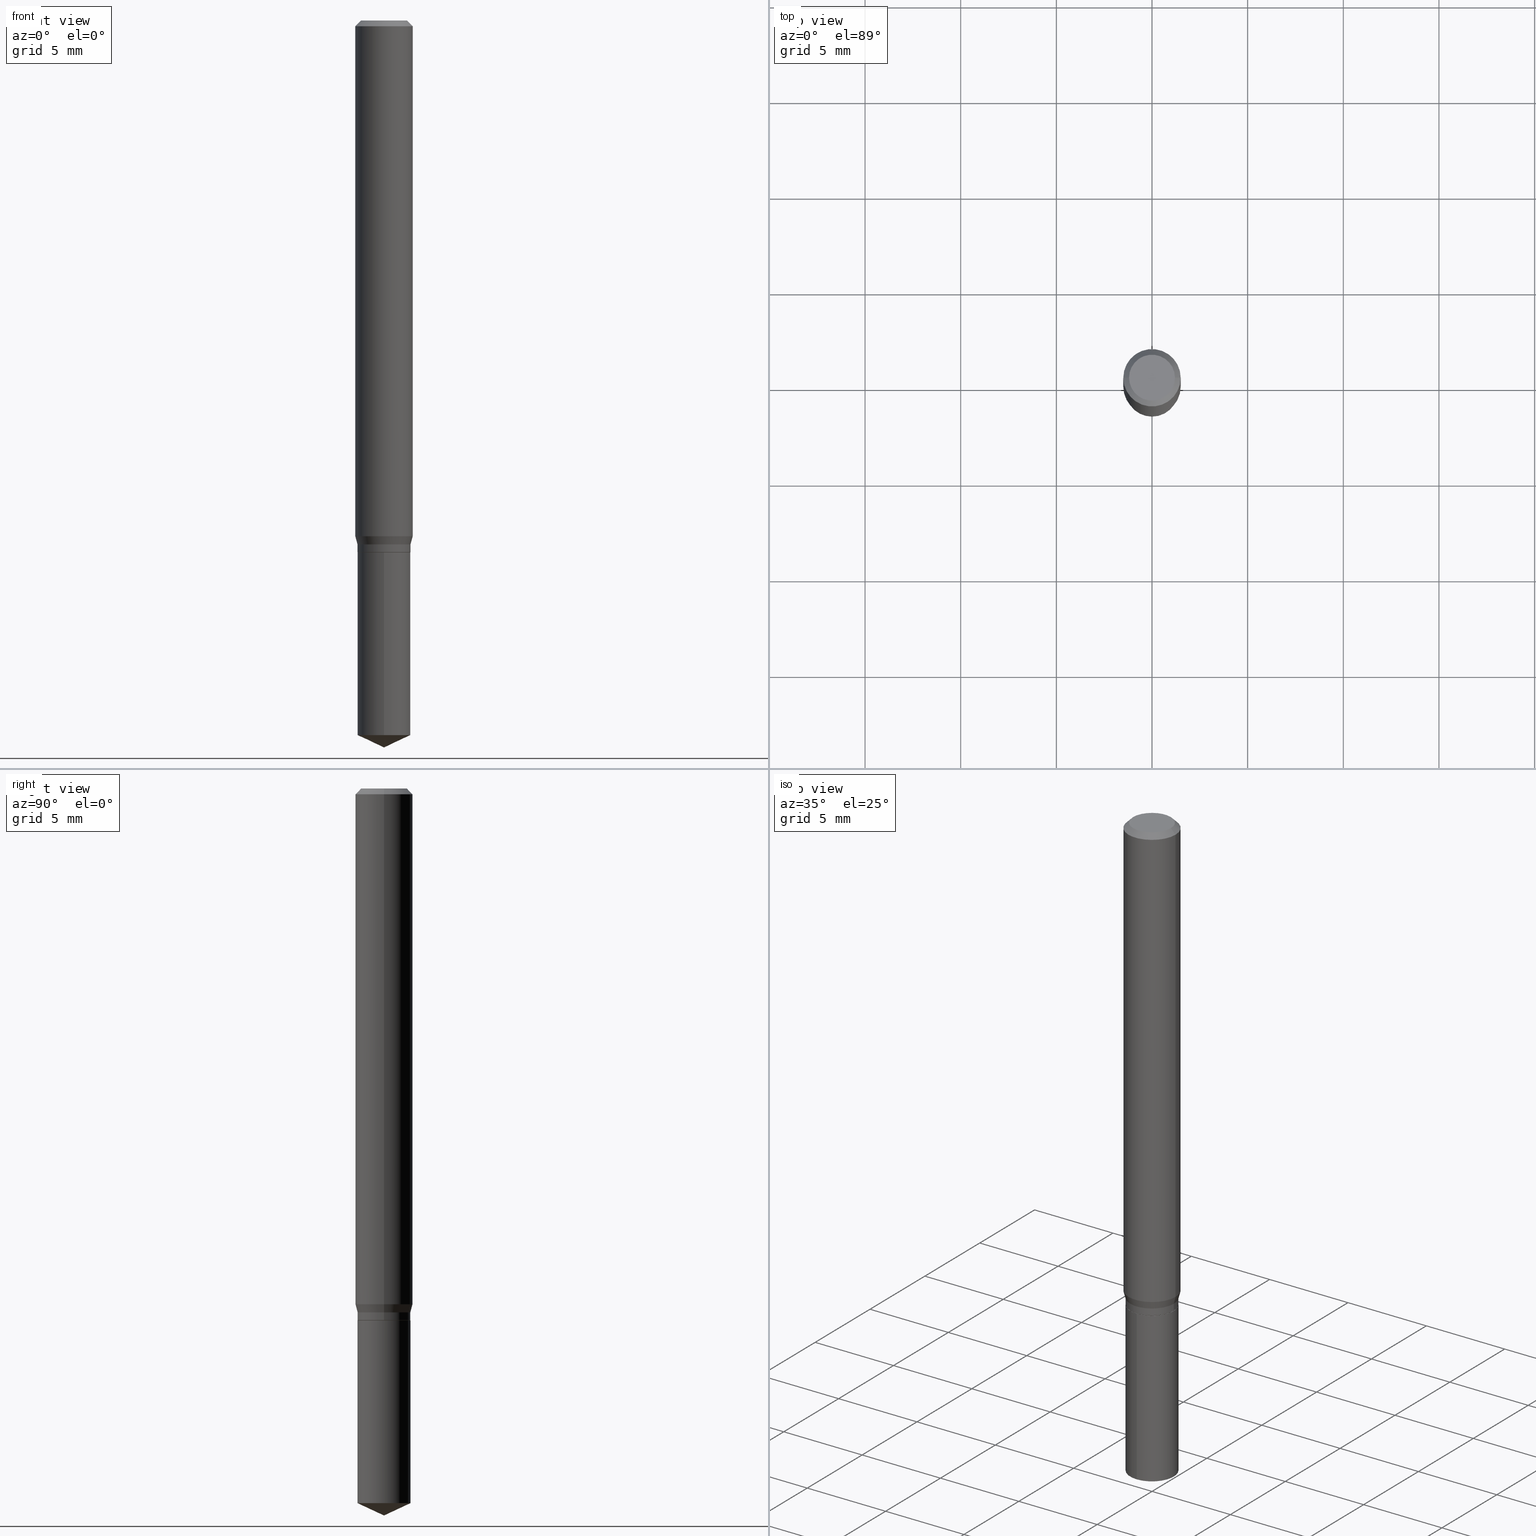
[diagram: canonical four-view strip — front | top / right | iso, engineering-drawing reading convention]
A machine part, canonical four-view strip (front | top / right | iso — engineering-drawing reading convention). The complete STEP part file that produces these views, byte-faithful:
ISO-10303-21;
HEADER;
FILE_DESCRIPTION (( 'STEP AP203' ),
    '1' );
FILE_NAME ('07693.STEP',
    '2024-04-24T01:09:54',
    ( '' ),
    ( '' ),
    'SwSTEP 2.0',
    'SolidWorks 2023',
    '' );
FILE_SCHEMA (( 'CONFIG_CONTROL_DESIGN' ));
ENDSEC;

DATA;
#1 = LINE ( 'NONE', #310, #263 ) ;
#2 = AXIS2_PLACEMENT_3D ( 'NONE', #54, #476, #392 ) ;
#3 = CIRCLE ( 'NONE', #325, 0.05455000000000000127 ) ;
#4 = EDGE_CURVE ( 'NONE', #235, #346, #106, .T. ) ;
#5 = ORIENTED_EDGE ( 'NONE', *, *, #34, .F. ) ;
#6 = PRODUCT_DEFINITION_FORMATION_WITH_SPECIFIED_SOURCE ( 'ANY', '', #371, .NOT_KNOWN. ) ;
#7 = CARTESIAN_POINT ( 'NONE',  ( 3.658651059288795076E-29, -5.223626456482161457E-15, -1.496099999999999985 ) ) ;
#8 = VERTEX_POINT ( 'NONE', #71 ) ;
#9 = LINE ( 'NONE', #7, #279 ) ;
#10 = EDGE_CURVE ( 'NONE', #285, #8, #149, .T. ) ;
#11 = CARTESIAN_POINT ( 'NONE',  ( 0.05905000000000006771, -4.123439461173745257E-16, 2.879382386107503723E-30 ) ) ;
#12 = DIRECTION ( 'NONE',  ( 1.000000000000000000, -6.982962677686265922E-15, 4.876176775795936353E-29 ) ) ;
#13 = VERTEX_POINT ( 'NONE', #94 ) ;
#14 = LINE ( 'NONE', #367, #163 ) ;
#15 = EDGE_CURVE ( 'NONE', #235, #372, #443, .T. ) ;
#16 = AXIS2_PLACEMENT_3D ( 'NONE', #298, #142, #295 ) ;
#17 = CARTESIAN_POINT ( 'NONE',  ( 2.888098660104664204E-31, -4.123439461173780263E-17, -0.01181000000000007218 ) ) ;
#18 = APPLICATION_CONTEXT ( 'configuration controlled 3d designs of mechanical parts and assemblies' ) ;
#19 = ORIENTED_EDGE ( 'NONE', *, *, #373, .T. ) ;
#20 = ORIENTED_EDGE ( 'NONE', *, *, #277, .F. ) ;
#21 = EDGE_LOOP ( 'NONE', ( #406, #19, #172 ) ) ;
#22 = CC_DESIGN_PERSON_AND_ORGANIZATION_ASSIGNMENT ( #444, #252, ( #371 ) ) ;
#23 = CARTESIAN_POINT ( 'NONE',  ( -0.05904999999999999832, -1.453806359604882366E-15, -0.01181000000000007218 ) ) ;
#24 = DIRECTION ( 'NONE',  ( 1.000000000000000000, -6.982962677686265133E-15, 0.000000000000000000 ) ) ;
#25 = DIRECTION ( 'NONE',  ( 0.7071067811865453523, -7.319954787623248157E-15, -0.7071067811865496822 ) ) ;
#26 = PERSON_AND_ORGANIZATION ( #455, #424 ) ;
#27 = EDGE_LOOP ( 'NONE', ( #439, #484, #233, #92 ) ) ;
#28 = EDGE_LOOP ( 'NONE', ( #120, #87, #409, #20 ) ) ;
#29 = EDGE_CURVE ( 'NONE', #13, #440, #317, .T. ) ;
#30 = AXIS2_PLACEMENT_3D ( 'NONE', #379, #118, #38 ) ;
#31 = DATE_TIME_ROLE ( 'creation_date' ) ;
#32 = EDGE_LOOP ( 'NONE', ( #362, #395, #150, #176 ) ) ;
#33 = PERSON_AND_ORGANIZATION ( #455, #424 ) ;
#34 = EDGE_CURVE ( 'NONE', #145, #56, #282, .T. ) ;
#35 = PLANE ( 'NONE',  #419 ) ;
#36 = FACE_OUTER_BOUND ( 'NONE', #260, .T. ) ;
#37 = CARTESIAN_POINT ( 'NONE',  ( -3.809206140677591118E-16, -0.05455000000000382460, -1.094499999999999806 ) ) ;
#38 = DIRECTION ( 'NONE',  ( 1.000000000000000000, -6.982962677686266711E-15, 4.876176775795936353E-29 ) ) ;
#39 = CONICAL_SURFACE ( 'NONE', #80, 0.05405000000000000082, 0.7853981633975507526 ) ;
#40 = CIRCLE ( 'NONE', #324, 0.05455000000000000127 ) ;
#41 = AXIS2_PLACEMENT_3D ( 'NONE', #423, #90, #124 ) ;
#42 = CARTESIAN_POINT ( 'NONE',  ( 2.676565608369631794E-29, -3.821426325363822773E-15, -1.094499999999999806 ) ) ;
#43 = ADVANCED_FACE ( 'NONE', ( #137 ), #35, .F. ) ;
#44 = AXIS2_PLACEMENT_3D ( 'NONE', #351, #152, #389 ) ;
#45 = CARTESIAN_POINT ( 'NONE',  ( 3.658672935554494692E-29, -5.223595400746700193E-15, -1.496099999999999985 ) ) ;
#46 = CARTESIAN_POINT ( 'NONE',  ( -0.05455000000000000127, -3.404322245693463224E-15, -1.078099999999999836 ) ) ;
#47 = ADVANCED_FACE ( 'NONE', ( #400 ), #261, .T. ) ;
#48 = DIRECTION ( 'NONE',  ( -2.445468806185136597E-29, 3.491481338843145583E-15, 1.000000000000000000 ) ) ;
#49 = CARTESIAN_POINT ( 'NONE',  ( 3.596456561951116999E-29, -5.134797467989521124E-15, -1.470662917247645085 ) ) ;
#50 = PLANE ( 'NONE',  #2 ) ;
#51 = APPROVAL ( #368, 'UNSPECIFIED' ) ;
#52 = CARTESIAN_POINT ( 'NONE',  ( 2.636459919948195417E-29, -3.764166031406795090E-15, -1.078099999999999836 ) ) ;
#53 = VECTOR ( 'NONE', #286, 39.37007874015748143 ) ;
#54 = CARTESIAN_POINT ( 'NONE',  ( 2.676565608369631794E-29, -3.821426325363822773E-15, -1.094499999999999806 ) ) ;
#55 = CC_DESIGN_APPROVAL ( #357, ( #452 ) ) ;
#56 = VERTEX_POINT ( 'NONE', #258 ) ;
#57 = DIRECTION ( 'NONE',  ( -0.7071067811866199593, 7.493145998870616062E-15, 0.7071067811864750752 ) ) ;
#58 = COORDINATED_UNIVERSAL_TIME_OFFSET ( 5, 0, .BEHIND. ) ;
#59 = DIRECTION ( 'NONE',  ( -2.445468806185136597E-29, 3.491481338843145583E-15, 1.000000000000000000 ) ) ;
#60 = CARTESIAN_POINT ( 'NONE',  ( 2.676565608369631794E-29, -3.821426325363822773E-15, -1.094499999999999806 ) ) ;
#61 = CALENDAR_DATE ( 2024, 23, 4 ) ;
#62 = VECTOR ( 'NONE', #288, 39.37007874015748143 ) ;
#63 = ORIENTED_EDGE ( 'NONE', *, *, #223, .F. ) ;
#64 = PERSON_AND_ORGANIZATION ( #455, #424 ) ;
#65 = VERTEX_POINT ( 'NONE', #302 ) ;
#66 = ADVANCED_FACE ( 'NONE', ( #347 ), #336, .T. ) ;
#67 =( NAMED_UNIT ( * ) SI_UNIT ( $, .STERADIAN. ) SOLID_ANGLE_UNIT ( ) );
#68 = PRODUCT_DEFINITION_SHAPE ( 'NONE', 'NONE',  #308 ) ;
#69 = EDGE_CURVE ( 'NONE', #113, #285, #192, .T. ) ;
#70 = FACE_OUTER_BOUND ( 'NONE', #477, .T. ) ;
#71 = CARTESIAN_POINT ( 'NONE',  ( 0.05904999999999999832, -4.535783407291118600E-16, -0.01181000000000007218 ) ) ;
#72 = VECTOR ( 'NONE', #236, 39.37007874015748854 ) ;
#73 = ADVANCED_BREP_SHAPE_REPRESENTATION ( '07693', ( #309, #155, #16 ), #251 ) ;
#74 = DATE_AND_TIME ( #348, #280 ) ;
#75 = EDGE_LOOP ( 'NONE', ( #274, #131, #161, #96 ) ) ;
#76 = CARTESIAN_POINT ( 'NONE',  ( 0.04724000000000000421, -3.852183633974369345E-16, -3.380025165621689721E-19 ) ) ;
#77 = CARTESIAN_POINT ( 'NONE',  ( 2.676565608369631794E-29, -3.821426325363822773E-15, -1.094499999999999806 ) ) ;
#78 = EDGE_CURVE ( 'NONE', #113, #440, #294, .T. ) ;
#79 = CARTESIAN_POINT ( 'NONE',  ( -3.809206140677498427E-16, -0.05455000000000512217, -1.470662917247644863 ) ) ;
#80 = AXIS2_PLACEMENT_3D ( 'NONE', #306, #224, #195 ) ;
#81 = VECTOR ( 'NONE', #25, 39.37007874015748143 ) ;
#82 = DIRECTION ( 'NONE',  ( -6.982962677686265922E-15, -1.000000000000000000, 2.503985328748179054E-15 ) ) ;
#83 = APPLICATION_CONTEXT ( 'configuration controlled 3d designs of mechanical parts and assemblies' ) ;
#84 = DIRECTION ( 'NONE',  ( 6.439704144417038242E-15, 0.9063077870366533784, 0.4226182617406922803 ) ) ;
#85 = ORIENTED_EDGE ( 'NONE', *, *, #206, .T. ) ;
#86 = FACE_OUTER_BOUND ( 'NONE', #28, .T. ) ;
#87 = ORIENTED_EDGE ( 'NONE', *, *, #198, .T. ) ;
#88 = LINE ( 'NONE', #276, #72 ) ;
#89 = AXIS2_PLACEMENT_3D ( 'NONE', #17, #364, #326 ) ;
#90 = DIRECTION ( 'NONE',  ( -2.445458899330790108E-29, 3.491495526022433205E-15, 1.000000000000000000 ) ) ;
#91 = CARTESIAN_POINT ( 'NONE',  ( 2.595390157699659796E-29, -3.705529295530707962E-15, -1.061305771365939510 ) ) ;
#92 = ORIENTED_EDGE ( 'NONE', *, *, #4, .F. ) ;
#93 = CARTESIAN_POINT ( 'NONE',  ( 3.876010623571613830E-16, 0.05454999999999617794, -1.094500000000000028 ) ) ;
#94 = CARTESIAN_POINT ( 'NONE',  ( -0.05905000000000013016, -3.285953810064368075E-15, -1.061305771365939510 ) ) ;
#95 = DIRECTION ( 'NONE',  ( -2.445458899330790108E-29, 3.491495526022433205E-15, 1.000000000000000000 ) ) ;
#96 = ORIENTED_EDGE ( 'NONE', *, *, #320, .F. ) ;
#97 = DIRECTION ( 'NONE',  ( 1.000000000000000000, -6.982962677686268288E-15, 0.000000000000000000 ) ) ;
#98 = DIRECTION ( 'NONE',  ( 1.000000000000000000, -6.982962677686268288E-15, 0.000000000000000000 ) ) ;
#99 = DIRECTION ( 'NONE',  ( 1.000000000000000000, -6.982962677686265922E-15, 4.876176775795936353E-29 ) ) ;
#100 = ORIENTED_EDGE ( 'NONE', *, *, #320, .T. ) ;
#101 = LOCAL_TIME ( 21, 9, 54.00000000000000000, #334 ) ;
#102 =( LENGTH_UNIT ( ) NAMED_UNIT ( * ) SI_UNIT ( $, .METRE. ) );
#103 = ORIENTED_EDGE ( 'NONE', *, *, #222, .T. ) ;
#104 = ADVANCED_FACE ( 'NONE', ( #107 ), #147, .T. ) ;
#105 = CALENDAR_DATE ( 2024, 23, 4 ) ;
#106 = LINE ( 'NONE', #190, #127 ) ;
#107 = FACE_OUTER_BOUND ( 'NONE', #321, .T. ) ;
#108 = DATE_AND_TIME ( #61, #219 ) ;
#109 = AXIS2_PLACEMENT_3D ( 'NONE', #319, #134, #278 ) ;
#110 = APPROVAL ( #487, 'UNSPECIFIED' ) ;
#111 = ORIENTED_EDGE ( 'NONE', *, *, #10, .T. ) ;
#112 = DIRECTION ( 'NONE',  ( -6.982962677686265922E-15, -1.000000000000000000, 2.503985328748179054E-15 ) ) ;
#113 = VERTEX_POINT ( 'NONE', #414 ) ;
#114 = CARTESIAN_POINT ( 'NONE',  ( 4.608028298449357654E-29, -1.055461821140384291E-15, -1.094499999999999806 ) ) ;
#115 = CIRCLE ( 'NONE', #353, 0.05405000000000000082 ) ;
#116 = ADVANCED_FACE ( 'NONE', ( #70 ), #377, .F. ) ;
#117 = AXIS2_PLACEMENT_3D ( 'NONE', #486, #297, #151 ) ;
#118 = DIRECTION ( 'NONE',  ( -2.445468806185136597E-29, 3.491481338843145583E-15, 1.000000000000000000 ) ) ;
#119 = DATE_AND_TIME ( #304, #388 ) ;
#120 = ORIENTED_EDGE ( 'NONE', *, *, #283, .F. ) ;
#121 = CARTESIAN_POINT ( 'NONE',  ( 0.05455000000000000127, -3.809206140677858345E-16, 2.659954431196683194E-30 ) ) ;
#122 = ADVANCED_FACE ( 'NONE', ( #36 ), #267, .T. ) ;
#123 = DIRECTION ( 'NONE',  ( 1.000000000000000000, -6.982962677686266711E-15, 0.000000000000000000 ) ) ;
#124 = DIRECTION ( 'NONE',  ( -6.982962677686267499E-15, -1.000000000000000000, 3.520397390770428626E-15 ) ) ;
#125 = CONICAL_SURFACE ( 'NONE', #387, 0.05904999999999999832, 0.7853981633974452814 ) ;
#126 = CC_DESIGN_SECURITY_CLASSIFICATION ( #452, ( #6 ) ) ;
#127 = VECTOR ( 'NONE', #405, 39.37007874015748854 ) ;
#128 = PRODUCT_RELATED_PRODUCT_CATEGORY ( 'detail', '', ( #371 ) ) ;
#129 = ORIENTED_EDGE ( 'NONE', *, *, #349, .T. ) ;
#130 = FACE_OUTER_BOUND ( 'NONE', #32, .T. ) ;
#131 = ORIENTED_EDGE ( 'NONE', *, *, #160, .T. ) ;
#132 = ORIENTED_EDGE ( 'NONE', *, *, #198, .F. ) ;
#133 = VERTEX_POINT ( 'NONE', #459 ) ;
#134 = DIRECTION ( 'NONE',  ( -2.445458899330790108E-29, 3.491495526022433205E-15, 1.000000000000000000 ) ) ;
#135 = CIRCLE ( 'NONE', #485, 0.05905000000000013016 ) ;
#136 = CARTESIAN_POINT ( 'NONE',  ( 2.676565608369631234E-29, -3.821426325363821984E-15, -1.094499999999999806 ) ) ;
#137 = FACE_OUTER_BOUND ( 'NONE', #171, .T. ) ;
#138 = DIRECTION ( 'NONE',  ( 1.000000000000000000, -6.982962677686266711E-15, 4.876185090822587894E-29 ) ) ;
#139 = DIRECTION ( 'NONE',  ( -2.445468806185136597E-29, 3.491481338843145583E-15, 1.000000000000000000 ) ) ;
#140 = DIRECTION ( 'NONE',  ( -2.445468806185136597E-29, 3.491481338843145583E-15, 1.000000000000000000 ) ) ;
#141 = APPROVAL_PERSON_ORGANIZATION ( #340, #51, #259 ) ;
#142 = DIRECTION ( 'NONE',  ( 0.000000000000000000, 0.000000000000000000, 1.000000000000000000 ) ) ;
#143 = AXIS2_PLACEMENT_3D ( 'NONE', #49, #205, #472 ) ;
#144 = EDGE_CURVE ( 'NONE', #243, #235, #421, .T. ) ;
#145 = VERTEX_POINT ( 'NONE', #79 ) ;
#146 = ADVANCED_FACE ( 'NONE', ( #352 ), #225, .T. ) ;
#147 = CYLINDRICAL_SURFACE ( 'NONE', #457, 0.05455000000000000127 ) ;
#148 = SECURITY_CLASSIFICATION_LEVEL ( 'unclassified' ) ;
#149 = LINE ( 'NONE', #350, #81 ) ;
#150 = ORIENTED_EDGE ( 'NONE', *, *, #78, .T. ) ;
#151 = DIRECTION ( 'NONE',  ( -6.982962677686267499E-15, -1.000000000000000000, 3.520397390770428626E-15 ) ) ;
#152 = DIRECTION ( 'NONE',  ( -2.445468806185136597E-29, 3.491481338843145583E-15, 1.000000000000000000 ) ) ;
#153 = CONICAL_SURFACE ( 'NONE', #305, 0.05455000000000000127, 0.2617993877991499629 ) ;
#154 = CARTESIAN_POINT ( 'NONE',  ( 3.658651059288794515E-29, -5.223626456482161457E-15, -1.496099999999999985 ) ) ;
#155 = MANIFOLD_SOLID_BREP ( 'Body-Move/Copy2[2]', #344 ) ;
#156 = CIRCLE ( 'NONE', #431, 0.05455000000000000127 ) ;
#157 = EDGE_CURVE ( 'NONE', #133, #385, #156, .T. ) ;
#158 = APPROVAL_STATUS ( 'not_yet_approved' ) ;
#159 = FACE_OUTER_BOUND ( 'NONE', #413, .T. ) ;
#160 = EDGE_CURVE ( 'NONE', #56, #133, #200, .T. ) ;
#161 = ORIENTED_EDGE ( 'NONE', *, *, #403, .F. ) ;
#162 = ORIENTED_EDGE ( 'NONE', *, *, #242, .T. ) ;
#163 = VECTOR ( 'NONE', #57, 39.37007874015748143 ) ;
#164 = ORIENTED_EDGE ( 'NONE', *, *, #144, .F. ) ;
#165 = DIRECTION ( 'NONE',  ( 1.000000000000000000, -6.982962677686268288E-15, 0.000000000000000000 ) ) ;
#166 = ORIENTED_EDGE ( 'NONE', *, *, #403, .T. ) ;
#167 = CC_DESIGN_DATE_AND_TIME_ASSIGNMENT ( #108, #31, ( #308 ) ) ;
#168 = DIRECTION ( 'NONE',  ( 1.000000000000000000, -6.982962677686266711E-15, 0.000000000000000000 ) ) ;
#169 = ORIENTED_EDGE ( 'NONE', *, *, #283, .T. ) ;
#170 = DIRECTION ( 'NONE',  ( -2.445468806185136597E-29, 3.491481338843145583E-15, 1.000000000000000000 ) ) ;
#171 = EDGE_LOOP ( 'NONE', ( #177, #63 ) ) ;
#172 = ORIENTED_EDGE ( 'NONE', *, *, #266, .F. ) ;
#173 = DIRECTION ( 'NONE',  ( 1.000000000000000000, -6.982962677686266711E-15, 0.000000000000000000 ) ) ;
#174 = CONICAL_SURFACE ( 'NONE', #41, 84.42940631927494621, 1.134464013796318671 ) ;
#175 = DIRECTION ( 'NONE',  ( -6.982962677686265922E-15, -1.000000000000000000, 2.503985328748179054E-15 ) ) ;
#176 = ORIENTED_EDGE ( 'NONE', *, *, #227, .T. ) ;
#177 = ORIENTED_EDGE ( 'NONE', *, *, #256, .F. ) ;
#178 = CARTESIAN_POINT ( 'NONE',  ( 0.05405000000000000082, -4.198855458092764467E-15, -1.094499999999999806 ) ) ;
#179 = ORIENTED_EDGE ( 'NONE', *, *, #373, .F. ) ;
#180 = EDGE_LOOP ( 'NONE', ( #179, #434, #5 ) ) ;
#181 = CARTESIAN_POINT ( 'NONE',  ( 2.675342873966538993E-29, -3.819680584694400481E-15, -1.093999999999999861 ) ) ;
#182 = LENGTH_MEASURE_WITH_UNIT ( LENGTH_MEASURE( 0.02539999999999999897 ), #102 );
#183 = CIRCLE ( 'NONE', #44, 0.05904999999999999832 ) ;
#184 = ORIENTED_EDGE ( 'NONE', *, *, #330, .T. ) ;
#185 = AXIS2_PLACEMENT_3D ( 'NONE', #214, #333, #480 ) ;
#186 =( NAMED_UNIT ( * ) PLANE_ANGLE_UNIT ( ) SI_UNIT ( $, .RADIAN. ) );
#187 = ADVANCED_FACE ( 'NONE', ( #234 ), #174, .T. ) ;
#188 = DIRECTION ( 'NONE',  ( -2.445468806185136597E-29, 3.491481338843145583E-15, 1.000000000000000000 ) ) ;
#189 = COORDINATED_UNIVERSAL_TIME_OFFSET ( 5, 0, .BEHIND. ) ;
#190 = CARTESIAN_POINT ( 'NONE',  ( 0.05455000000000000127, -4.145086645474580579E-15, -1.078099999999999836 ) ) ;
#191 = CIRCLE ( 'NONE', #109, 0.05455000000000000127 ) ;
#192 = CIRCLE ( 'NONE', #265, 0.04724000000000000421 ) ;
#193 = VERTEX_POINT ( 'NONE', #154 ) ;
#194 = DIRECTION ( 'NONE',  ( -2.438088387897960049E-29, 3.491481338843145188E-15, 1.000000000000000000 ) ) ;
#195 = DIRECTION ( 'NONE',  ( 1.000000000000000000, -6.982962677686266711E-15, 0.000000000000000000 ) ) ;
#196 = CC_DESIGN_DATE_AND_TIME_ASSIGNMENT ( #74, #380, ( #452 ) ) ;
#197 = CARTESIAN_POINT ( 'NONE',  ( 2.676565608369631234E-29, -3.821426325363821984E-15, -1.094499999999999806 ) ) ;
#198 = EDGE_CURVE ( 'NONE', #281, #243, #3, .T. ) ;
#199 = EDGE_CURVE ( 'NONE', #243, #281, #40, .T. ) ;
#200 = LINE ( 'NONE', #93, #217 ) ;
#201 = ORIENTED_EDGE ( 'NONE', *, *, #4, .T. ) ;
#202 = CONICAL_SURFACE ( 'NONE', #271, 0.05455000000000000127, 0.2617993877991499629 ) ;
#203 = CARTESIAN_POINT ( 'NONE',  ( 2.676565608369631794E-29, -3.821426325363822773E-15, -1.094499999999999806 ) ) ;
#204 = DIRECTION ( 'NONE',  ( 1.000000000000000000, -6.982962677686268288E-15, 0.000000000000000000 ) ) ;
#205 = DIRECTION ( 'NONE',  ( -2.445458899330790108E-29, 3.491495526022433205E-15, 1.000000000000000000 ) ) ;
#206 = EDGE_CURVE ( 'NONE', #13, #346, #230, .T. ) ;
#207 = AXIS2_PLACEMENT_3D ( 'NONE', #136, #428, #168 ) ;
#208 = FACE_OUTER_BOUND ( 'NONE', #338, .T. ) ;
#209 = ORIENTED_EDGE ( 'NONE', *, *, #266, .T. ) ;
#210 = LINE ( 'NONE', #11, #53 ) ;
#211 = CC_DESIGN_PERSON_AND_ORGANIZATION_ASSIGNMENT ( #226, #270, ( #452 ) ) ;
#212 = DIMENSIONAL_EXPONENTS ( 1.000000000000000000, 0.000000000000000000, 0.000000000000000000, 0.000000000000000000, 0.000000000000000000, 0.000000000000000000, 0.000000000000000000 ) ;
#213 = CARTESIAN_POINT ( 'NONE',  ( 2.636459919948195417E-29, -3.764166031406795090E-15, -1.078099999999999836 ) ) ;
#214 = CARTESIAN_POINT ( 'NONE',  ( 4.132873053354867254E-48, -5.900647395337818946E-34, -1.690012582823346072E-19 ) ) ;
#215 = ADVANCED_FACE ( 'NONE', ( #250 ), #202, .T. ) ;
#216 = AXIS2_PLACEMENT_3D ( 'NONE', #52, #435, #97 ) ;
#217 = VECTOR ( 'NONE', #429, 39.37007874015748143 ) ;
#218 = DIRECTION ( 'NONE',  ( 1.000000000000000000, -6.982962677686265922E-15, 4.876176775795935793E-29 ) ) ;
#219 = LOCAL_TIME ( 21, 9, 54.00000000000000000, #189 ) ;
#220 = FACE_OUTER_BOUND ( 'NONE', #244, .T. ) ;
#221 = AXIS2_PLACEMENT_3D ( 'NONE', #287, #436, #98 ) ;
#222 = EDGE_CURVE ( 'NONE', #65, #281, #14, .T. ) ;
#223 = EDGE_CURVE ( 'NONE', #65, #474, #115, .T. ) ;
#224 = DIRECTION ( 'NONE',  ( -2.445468806185136597E-29, 3.491481338843145583E-15, 1.000000000000000000 ) ) ;
#225 = CYLINDRICAL_SURFACE ( 'NONE', #407, 0.05455000000000000127 ) ;
#226 = PERSON_AND_ORGANIZATION ( #455, #424 ) ;
#227 = EDGE_CURVE ( 'NONE', #440, #8, #292, .T. ) ;
#228 = CONICAL_SURFACE ( 'NONE', #89, 0.05904999999999999832, 0.7853981633974452814 ) ;
#229 = DESIGN_CONTEXT ( 'detailed design', #18, 'design' ) ;
#230 = CIRCLE ( 'NONE', #417, 0.05905000000000013016 ) ;
#231 = DIRECTION ( 'NONE',  ( -2.445468806185136877E-29, 3.491481338843145188E-15, 1.000000000000000000 ) ) ;
#232 = FACE_OUTER_BOUND ( 'NONE', #27, .T. ) ;
#233 = ORIENTED_EDGE ( 'NONE', *, *, #420, .F. ) ;
#234 = FACE_OUTER_BOUND ( 'NONE', #180, .T. ) ;
#235 = VERTEX_POINT ( 'NONE', #464 ) ;
#236 = DIRECTION ( 'NONE',  ( -0.2588190451025212391, 5.211531920934549464E-15, 0.9659258262890679791 ) ) ;
#237 = CIRCLE ( 'NONE', #365, 0.05455000000000000127 ) ;
#238 = CARTESIAN_POINT ( 'NONE',  ( 0.000000000000000000, 0.000000000000000000, 0.000000000000000000 ) ) ;
#239 = ORIENTED_EDGE ( 'NONE', *, *, #29, .T. ) ;
#240 = CARTESIAN_POINT ( 'NONE',  ( -0.05905000000000006771, 4.195754854663396409E-16, -2.904631170795525045E-30 ) ) ;
#241 = CARTESIAN_POINT ( 'NONE',  ( 2.636459919948195417E-29, -3.764166031406795090E-15, -1.078099999999999836 ) ) ;
#242 = EDGE_CURVE ( 'NONE', #346, #8, #210, .T. ) ;
#243 = VERTEX_POINT ( 'NONE', #470 ) ;
#244 = EDGE_LOOP ( 'NONE', ( #416, #103, #264, #375 ) ) ;
#245 = CARTESIAN_POINT ( 'NONE',  ( -0.05455000000000000127, -3.404322245693463224E-15, -1.093999999999999861 ) ) ;
#246 = DIRECTION ( 'NONE',  ( 1.000000000000000000, -6.982962677686265133E-15, 0.000000000000000000 ) ) ;
#247 = ORIENTED_EDGE ( 'NONE', *, *, #349, .F. ) ;
#248 = EDGE_CURVE ( 'NONE', #372, #13, #88, .T. ) ;
#249 = EDGE_LOOP ( 'NONE', ( #313, #314, #201, #415 ) ) ;
#250 = FACE_OUTER_BOUND ( 'NONE', #249, .T. ) ;
#251 =( GEOMETRIC_REPRESENTATION_CONTEXT ( 3 ) GLOBAL_UNCERTAINTY_ASSIGNED_CONTEXT ( ( #268 ) ) GLOBAL_UNIT_ASSIGNED_CONTEXT ( ( #450, #186, #67 ) ) REPRESENTATION_CONTEXT ( 'NONE', 'WORKASPACE' ) );
#252 = PERSON_AND_ORGANIZATION_ROLE ( 'design_owner' ) ;
#253 = ORIENTED_EDGE ( 'NONE', *, *, #160, .F. ) ;
#254 = DIRECTION ( 'NONE',  ( 1.000000000000000000, -6.982962677686266711E-15, 0.000000000000000000 ) ) ;
#255 = PERSON_AND_ORGANIZATION ( #455, #424 ) ;
#256 = EDGE_CURVE ( 'NONE', #474, #65, #479, .T. ) ;
#257 = PERSON_AND_ORGANIZATION_ROLE ( 'design_supplier' ) ;
#258 = CARTESIAN_POINT ( 'NONE',  ( 3.876010623571705043E-16, 0.05454999999999486648, -1.470662917247645307 ) ) ;
#259 = APPROVAL_ROLE ( '' ) ;
#260 = EDGE_LOOP ( 'NONE', ( #328, #239, #331, #289 ) ) ;
#261 = CONICAL_SURFACE ( 'NONE', #117, 84.42940631927494621, 1.134464013796318671 ) ;
#262 = DIRECTION ( 'NONE',  ( -2.445468806185136597E-29, 3.491481338843145583E-15, 1.000000000000000000 ) ) ;
#263 = VECTOR ( 'NONE', #382, 39.37007874015748143 ) ;
#264 = ORIENTED_EDGE ( 'NONE', *, *, #199, .F. ) ;
#265 = AXIS2_PLACEMENT_3D ( 'NONE', #488, #262, #402 ) ;
#266 = EDGE_CURVE ( 'NONE', #56, #145, #191, .T. ) ;
#267 = CYLINDRICAL_SURFACE ( 'NONE', #30, 0.05905000000000006771 ) ;
#268 = UNCERTAINTY_MEASURE_WITH_UNIT (LENGTH_MEASURE( 1.000000000000000082E-05 ), #450, 'distance_accuracy_value', 'NONE');
#269 = APPROVAL_DATE_TIME ( #119, #357 ) ;
#270 = PERSON_AND_ORGANIZATION_ROLE ( 'classification_officer' ) ;
#271 = AXIS2_PLACEMENT_3D ( 'NONE', #213, #140, #397 ) ;
#272 = LOCAL_TIME ( 21, 9, 54.00000000000000000, #58 ) ;
#273 = DIRECTION ( 'NONE',  ( -6.982962677686265922E-15, -1.000000000000000000, 2.503985328748179054E-15 ) ) ;
#274 = ORIENTED_EDGE ( 'NONE', *, *, #34, .T. ) ;
#275 = CARTESIAN_POINT ( 'NONE',  ( 0.05405000000000000082, -4.198855458092764467E-15, -1.094499999999999806 ) ) ;
#276 = CARTESIAN_POINT ( 'NONE',  ( -0.05455000000000000127, -3.376564969049660133E-15, -1.078099999999999836 ) ) ;
#277 = EDGE_CURVE ( 'NONE', #372, #235, #358, .T. ) ;
#278 = DIRECTION ( 'NONE',  ( -6.982962677686265922E-15, -1.000000000000000000, 5.007970657496358109E-15 ) ) ;
#279 = VECTOR ( 'NONE', #394, 39.37007874015748143 ) ;
#280 = LOCAL_TIME ( 21, 9, 54.00000000000000000, #300 ) ;
#281 = VERTEX_POINT ( 'NONE', #245 ) ;
#282 = CIRCLE ( 'NONE', #143, 0.05455000000000000127 ) ;
#283 = EDGE_CURVE ( 'NONE', #281, #372, #1, .T. ) ;
#284 = LINE ( 'NONE', #178, #62 ) ;
#285 = VERTEX_POINT ( 'NONE', #76 ) ;
#286 = DIRECTION ( 'NONE',  ( -2.445468806185136877E-29, 3.491481338843145188E-15, 1.000000000000000000 ) ) ;
#287 = CARTESIAN_POINT ( 'NONE',  ( 2.636459919948195417E-29, -3.764166031406795090E-15, -1.078099999999999836 ) ) ;
#288 = DIRECTION ( 'NONE',  ( 0.7071067811866199593, -2.468850131083015945E-15, 0.7071067811864750752 ) ) ;
#289 = ORIENTED_EDGE ( 'NONE', *, *, #242, .F. ) ;
#290 = CARTESIAN_POINT ( 'NONE',  ( 2.675342873966538993E-29, -3.819680584694400481E-15, -1.093999999999999861 ) ) ;
#291 = LINE ( 'NONE', #45, #323 ) ;
#292 = CIRCLE ( 'NONE', #430, 0.05904999999999999832 ) ;
#293 = MECHANICAL_CONTEXT ( 'NONE', #83, 'mechanical' ) ;
#294 = LINE ( 'NONE', #410, #471 ) ;
#295 = DIRECTION ( 'NONE',  ( 1.000000000000000000, 0.000000000000000000, 0.000000000000000000 ) ) ;
#296 = CONICAL_SURFACE ( 'NONE', #381, 0.05405000000000000082, 0.7853981633975507526 ) ;
#297 = DIRECTION ( 'NONE',  ( -2.445458899330790108E-29, 3.491495526022433205E-15, 1.000000000000000000 ) ) ;
#298 = CARTESIAN_POINT ( 'NONE',  ( 0.000000000000000000, 0.000000000000000000, 0.000000000000000000 ) ) ;
#299 = CARTESIAN_POINT ( 'NONE',  ( 0.000000000000000000, 0.000000000000000000, 0.000000000000000000 ) ) ;
#300 = COORDINATED_UNIVERSAL_TIME_OFFSET ( 5, 0, .BEHIND. ) ;
#301 = ADVANCED_FACE ( 'NONE', ( #159 ), #39, .T. ) ;
#302 = CARTESIAN_POINT ( 'NONE',  ( -0.05405000000000000082, -3.434728749511377515E-15, -1.094499999999999806 ) ) ;
#303 = ADVANCED_FACE ( 'NONE', ( #220 ), #296, .T. ) ;
#304 = CALENDAR_DATE ( 2024, 23, 4 ) ;
#305 = AXIS2_PLACEMENT_3D ( 'NONE', #241, #427, #384 ) ;
#306 = CARTESIAN_POINT ( 'NONE',  ( 2.676565608369631234E-29, -3.821426325363821984E-15, -1.094499999999999806 ) ) ;
#307 = VECTOR ( 'NONE', #231, 39.37007874015748143 ) ;
#308 = PRODUCT_DEFINITION ( 'UNKNOWN', '', #6, #229 ) ;
#309 = MANIFOLD_SOLID_BREP ( 'Body-Move/Copy2[1]', #354 ) ;
#310 = CARTESIAN_POINT ( 'NONE',  ( -0.05455000000000000127, 3.876010623571346604E-16, -2.683279091734051031E-30 ) ) ;
#311 = DIRECTION ( 'NONE',  ( -2.445458899330790108E-29, 3.491495526022433599E-15, 1.000000000000000000 ) ) ;
#312 = APPROVAL_PERSON_ORGANIZATION ( #26, #110, #404 ) ;
#313 = ORIENTED_EDGE ( 'NONE', *, *, #248, .F. ) ;
#314 = ORIENTED_EDGE ( 'NONE', *, *, #277, .T. ) ;
#315 = DIRECTION ( 'NONE',  ( -2.445468806185136597E-29, 3.491481338843145583E-15, 1.000000000000000000 ) ) ;
#316 = ORIENTED_EDGE ( 'NONE', *, *, #29, .F. ) ;
#317 = LINE ( 'NONE', #240, #398 ) ;
#318 = CARTESIAN_POINT ( 'NONE',  ( 0.000000000000000000, 0.000000000000000000, 0.000000000000000000 ) ) ;
#319 = CARTESIAN_POINT ( 'NONE',  ( 3.596456561951116999E-29, -5.134797467989521124E-15, -1.470662917247645085 ) ) ;
#320 = EDGE_CURVE ( 'NONE', #145, #385, #356, .T. ) ;
#321 = EDGE_LOOP ( 'NONE', ( #253, #209, #100, #359 ) ) ;
#322 = ORIENTED_EDGE ( 'NONE', *, *, #199, .T. ) ;
#323 = VECTOR ( 'NONE', #84, 39.37007874015748854 ) ;
#324 = AXIS2_PLACEMENT_3D ( 'NONE', #181, #478, #204 ) ;
#325 = AXIS2_PLACEMENT_3D ( 'NONE', #290, #48, #165 ) ;
#326 = DIRECTION ( 'NONE',  ( -1.000000000000000000, 6.982962677686266711E-15, 0.000000000000000000 ) ) ;
#327 = FACE_OUTER_BOUND ( 'NONE', #396, .T. ) ;
#328 = ORIENTED_EDGE ( 'NONE', *, *, #420, .T. ) ;
#329 = CARTESIAN_POINT ( 'NONE',  ( 2.676565608369631234E-29, -3.821426325363821984E-15, -1.094499999999999806 ) ) ;
#330 = EDGE_CURVE ( 'NONE', #8, #440, #183, .T. ) ;
#331 = ORIENTED_EDGE ( 'NONE', *, *, #330, .F. ) ;
#332 = AXIS2_PLACEMENT_3D ( 'NONE', #366, #437, #138 ) ;
#333 = DIRECTION ( 'NONE',  ( 2.438088387897960049E-29, -3.491481338843145188E-15, -1.000000000000000000 ) ) ;
#334 = COORDINATED_UNIVERSAL_TIME_OFFSET ( 5, 0, .BEHIND. ) ;
#335 = CC_DESIGN_PERSON_AND_ORGANIZATION_ASSIGNMENT ( #255, #482, ( #308 ) ) ;
#336 = CYLINDRICAL_SURFACE ( 'NONE', #370, 0.05905000000000006771 ) ;
#337 = DIRECTION ( 'NONE',  ( 2.445468806185136597E-29, -3.491481338843145583E-15, -1.000000000000000000 ) ) ;
#338 = EDGE_LOOP ( 'NONE', ( #247, #111, #184, #412 ) ) ;
#339 = DIRECTION ( 'NONE',  ( 1.000000000000000000, -6.982962677686266711E-15, 4.876176775795936353E-29 ) ) ;
#340 = PERSON_AND_ORGANIZATION ( #455, #424 ) ;
#341 = CC_DESIGN_PERSON_AND_ORGANIZATION_ASSIGNMENT ( #33, #408, ( #6 ) ) ;
#342 = CC_DESIGN_APPROVAL ( #51, ( #6 ) ) ;
#343 = APPLICATION_PROTOCOL_DEFINITION ( 'international standard', 'config_control_design', 1994, #18 ) ;
#344 = CLOSED_SHELL ( 'NONE', ( #303, #481, #122, #448, #438, #475, #215, #66, #463, #116, #43, #301 ) ) ;
#345 = ORIENTED_EDGE ( 'NONE', *, *, #157, .T. ) ;
#346 = VERTEX_POINT ( 'NONE', #473 ) ;
#347 = FACE_OUTER_BOUND ( 'NONE', #426, .T. ) ;
#348 = CALENDAR_DATE ( 2024, 23, 4 ) ;
#349 = EDGE_CURVE ( 'NONE', #285, #113, #456, .T. ) ;
#350 = CARTESIAN_POINT ( 'NONE',  ( 0.05904999999999999832, -4.463468013801466955E-16, -0.01181000000000007218 ) ) ;
#351 = CARTESIAN_POINT ( 'NONE',  ( 2.888098660104664204E-31, -4.123439461173780263E-17, -0.01181000000000007218 ) ) ;
#352 = FACE_OUTER_BOUND ( 'NONE', #75, .T. ) ;
#353 = AXIS2_PLACEMENT_3D ( 'NONE', #329, #59, #254 ) ;
#354 = CLOSED_SHELL ( 'NONE', ( #146, #187, #47, #104, #383 ) ) ;
#355 = DIRECTION ( 'NONE',  ( -2.445458899330790108E-29, 3.491495526022433205E-15, 1.000000000000000000 ) ) ;
#356 = LINE ( 'NONE', #37, #461 ) ;
#357 = APPROVAL ( #158, 'UNSPECIFIED' ) ;
#358 = CIRCLE ( 'NONE', #216, 0.05455000000000000127 ) ;
#359 = ORIENTED_EDGE ( 'NONE', *, *, #157, .F. ) ;
#360 = CYLINDRICAL_SURFACE ( 'NONE', #468, 0.05455000000000000127 ) ;
#361 = CYLINDRICAL_SURFACE ( 'NONE', #451, 0.05455000000000000127 ) ;
#362 = ORIENTED_EDGE ( 'NONE', *, *, #10, .F. ) ;
#363 = EDGE_CURVE ( 'NONE', #474, #243, #284, .T. ) ;
#364 = DIRECTION ( 'NONE',  ( 2.445468806185136597E-29, -3.491481338843145583E-15, -1.000000000000000000 ) ) ;
#365 = AXIS2_PLACEMENT_3D ( 'NONE', #203, #95, #175 ) ;
#366 = CARTESIAN_POINT ( 'NONE',  ( 8.265746106709734507E-48, -1.180129479067563789E-33, -3.380025165646692144E-19 ) ) ;
#367 = CARTESIAN_POINT ( 'NONE',  ( -0.05405000000000000082, -3.437377976685487927E-15, -1.094499999999999806 ) ) ;
#368 = APPROVAL_STATUS ( 'not_yet_approved' ) ;
#369 = APPROVAL_DATE_TIME ( #374, #51 ) ;
#370 = AXIS2_PLACEMENT_3D ( 'NONE', #299, #188, #339 ) ;
#371 = PRODUCT ( '07693', '07693', '', ( #293 ) ) ;
#372 = VERTEX_POINT ( 'NONE', #46 ) ;
#373 = EDGE_CURVE ( 'NONE', #193, #145, #9, .T. ) ;
#374 = DATE_AND_TIME ( #105, #272 ) ;
#375 = ORIENTED_EDGE ( 'NONE', *, *, #363, .F. ) ;
#376 = CC_DESIGN_APPROVAL ( #110, ( #308 ) ) ;
#377 = PLANE ( 'NONE',  #185 ) ;
#378 = DIRECTION ( 'NONE',  ( -2.445468806185136597E-29, 3.491481338843145583E-15, 1.000000000000000000 ) ) ;
#379 = CARTESIAN_POINT ( 'NONE',  ( 0.000000000000000000, 0.000000000000000000, 0.000000000000000000 ) ) ;
#380 = DATE_TIME_ROLE ( 'classification_date' ) ;
#381 = AXIS2_PLACEMENT_3D ( 'NONE', #197, #378, #123 ) ;
#382 = DIRECTION ( 'NONE',  ( -2.445468806185136877E-29, 3.491481338843145188E-15, 1.000000000000000000 ) ) ;
#383 = ADVANCED_FACE ( 'NONE', ( #386 ), #50, .F. ) ;
#384 = DIRECTION ( 'NONE',  ( 1.000000000000000000, -6.982962677686268288E-15, 0.000000000000000000 ) ) ;
#385 = VERTEX_POINT ( 'NONE', #433 ) ;
#386 = FACE_OUTER_BOUND ( 'NONE', #445, .T. ) ;
#387 = AXIS2_PLACEMENT_3D ( 'NONE', #411, #337, #442 ) ;
#388 = LOCAL_TIME ( 21, 9, 54.00000000000000000, #458 ) ;
#389 = DIRECTION ( 'NONE',  ( 1.000000000000000000, -6.982962677686266711E-15, 0.000000000000000000 ) ) ;
#390 = ORIENTED_EDGE ( 'NONE', *, *, #227, .F. ) ;
#391 = DIRECTION ( 'NONE',  ( -2.445468806185136877E-29, 3.491481338843145188E-15, 1.000000000000000000 ) ) ;
#392 = DIRECTION ( 'NONE',  ( 6.982962677686265922E-15, 1.000000000000000000, -3.491495526022433599E-15 ) ) ;
#393 = CARTESIAN_POINT ( 'NONE',  ( 2.888098660104664204E-31, -4.123439461173780263E-17, -0.01181000000000007218 ) ) ;
#394 = DIRECTION ( 'NONE',  ( -6.328713451373382789E-15, -0.9063077870366502697, 0.4226182617406985531 ) ) ;
#395 = ORIENTED_EDGE ( 'NONE', *, *, #69, .F. ) ;
#396 = EDGE_LOOP ( 'NONE', ( #322, #169, #469, #164 ) ) ;
#397 = DIRECTION ( 'NONE',  ( 1.000000000000000000, -6.982962677686268288E-15, 0.000000000000000000 ) ) ;
#398 = VECTOR ( 'NONE', #391, 39.37007874015748143 ) ;
#399 = APPROVAL_DATE_TIME ( #483, #110 ) ;
#400 = FACE_OUTER_BOUND ( 'NONE', #21, .T. ) ;
#401 = APPLICATION_PROTOCOL_DEFINITION ( 'international standard', 'config_control_design', 1994, #83 ) ;
#402 = DIRECTION ( 'NONE',  ( 1.000000000000000000, -6.982962677686266711E-15, 4.876185090822587894E-29 ) ) ;
#403 = EDGE_CURVE ( 'NONE', #385, #133, #237, .T. ) ;
#404 = APPROVAL_ROLE ( '' ) ;
#405 = DIRECTION ( 'NONE',  ( 0.2588190451025212391, 1.565188264969622362E-15, 0.9659258262890679791 ) ) ;
#406 = ORIENTED_EDGE ( 'NONE', *, *, #446, .F. ) ;
#407 = AXIS2_PLACEMENT_3D ( 'NONE', #42, #355, #273 ) ;
#408 = PERSON_AND_ORGANIZATION_ROLE ( 'creator' ) ;
#409 = ORIENTED_EDGE ( 'NONE', *, *, #144, .T. ) ;
#410 = CARTESIAN_POINT ( 'NONE',  ( -0.05904999999999999832, 3.711095515056362547E-16, -0.01181000000000007218 ) ) ;
#411 = CARTESIAN_POINT ( 'NONE',  ( 2.888098660104664204E-31, -4.123439461173780263E-17, -0.01181000000000007218 ) ) ;
#412 = ORIENTED_EDGE ( 'NONE', *, *, #78, .F. ) ;
#413 = EDGE_LOOP ( 'NONE', ( #422, #462, #432, #132 ) ) ;
#414 = CARTESIAN_POINT ( 'NONE',  ( -0.04724000000000000421, 3.504923541997677355E-16, -3.380025165670481712E-19 ) ) ;
#415 = ORIENTED_EDGE ( 'NONE', *, *, #206, .F. ) ;
#416 = ORIENTED_EDGE ( 'NONE', *, *, #256, .T. ) ;
#417 = AXIS2_PLACEMENT_3D ( 'NONE', #467, #441, #24 ) ;
#418 = APPROVAL_PERSON_ORGANIZATION ( #490, #357, #489 ) ;
#419 = AXIS2_PLACEMENT_3D ( 'NONE', #114, #194, #218 ) ;
#420 = EDGE_CURVE ( 'NONE', #346, #13, #135, .T. ) ;
#421 = LINE ( 'NONE', #121, #307 ) ;
#422 = ORIENTED_EDGE ( 'NONE', *, *, #222, .F. ) ;
#423 = CARTESIAN_POINT ( 'NONE',  ( -9.261924752013118283E-28, 1.322368428517963298E-13, 37.87397874015748300 ) ) ;
#424 = ORGANIZATION ( 'UNSPECIFIED', 'UNSPECIFIED', '' ) ;
#425 = DIRECTION ( 'NONE',  ( -2.445458899330790108E-29, 3.491495526022433205E-15, 1.000000000000000000 ) ) ;
#426 = EDGE_LOOP ( 'NONE', ( #316, #85, #162, #390 ) ) ;
#427 = DIRECTION ( 'NONE',  ( -2.445468806185136597E-29, 3.491481338843145583E-15, 1.000000000000000000 ) ) ;
#428 = DIRECTION ( 'NONE',  ( -2.445468806185136597E-29, 3.491481338843145583E-15, 1.000000000000000000 ) ) ;
#429 = DIRECTION ( 'NONE',  ( -2.445458899330790108E-29, 3.491495526022433599E-15, 1.000000000000000000 ) ) ;
#430 = AXIS2_PLACEMENT_3D ( 'NONE', #393, #315, #173 ) ;
#431 = AXIS2_PLACEMENT_3D ( 'NONE', #77, #425, #82 ) ;
#432 = ORIENTED_EDGE ( 'NONE', *, *, #363, .T. ) ;
#433 = CARTESIAN_POINT ( 'NONE',  ( -3.809206140677591118E-16, -0.05455000000000382460, -1.094499999999999806 ) ) ;
#434 = ORIENTED_EDGE ( 'NONE', *, *, #446, .T. ) ;
#435 = DIRECTION ( 'NONE',  ( -2.445468806185136597E-29, 3.491481338843145583E-15, 1.000000000000000000 ) ) ;
#436 = DIRECTION ( 'NONE',  ( -2.445468806185136597E-29, 3.491481338843145583E-15, 1.000000000000000000 ) ) ;
#437 = DIRECTION ( 'NONE',  ( -2.445468806185136597E-29, 3.491481338843145583E-15, 1.000000000000000000 ) ) ;
#438 = ADVANCED_FACE ( 'NONE', ( #327 ), #361, .T. ) ;
#439 = ORIENTED_EDGE ( 'NONE', *, *, #15, .T. ) ;
#440 = VERTEX_POINT ( 'NONE', #23 ) ;
#441 = DIRECTION ( 'NONE',  ( -2.445468806185136597E-29, 3.491481338843145583E-15, 1.000000000000000000 ) ) ;
#442 = DIRECTION ( 'NONE',  ( -1.000000000000000000, 6.982962677686266711E-15, 0.000000000000000000 ) ) ;
#443 = CIRCLE ( 'NONE', #221, 0.05455000000000000127 ) ;
#444 = PERSON_AND_ORGANIZATION ( #455, #424 ) ;
#445 = EDGE_LOOP ( 'NONE', ( #166, #345 ) ) ;
#446 = EDGE_CURVE ( 'NONE', #193, #56, #291, .T. ) ;
#447 = CALENDAR_DATE ( 2024, 23, 4 ) ;
#448 = ADVANCED_FACE ( 'NONE', ( #232 ), #153, .T. ) ;
#449 = DIRECTION ( 'NONE',  ( -0.7071067811865453523, 2.468850131082234184E-15, -0.7071067811865496822 ) ) ;
#450 =( CONVERSION_BASED_UNIT ( 'INCH', #182 ) LENGTH_UNIT ( ) NAMED_UNIT ( #212 ) );
#451 = AXIS2_PLACEMENT_3D ( 'NONE', #238, #139, #12 ) ;
#452 = SECURITY_CLASSIFICATION ( '', '', #148 ) ;
#453 = DIRECTION ( 'NONE',  ( -2.445458899330790108E-29, 3.491495526022433205E-15, 1.000000000000000000 ) ) ;
#454 = SHAPE_DEFINITION_REPRESENTATION ( #68, #73 ) ;
#455 = PERSON ( 'UNSPECIFIED', 'UNSPECIFIED', 'UNSPECIFIED', ('UNSPECIFIED'), ('UNSPECIFIED'), ('UNSPECIFIED') ) ;
#456 = CIRCLE ( 'NONE', #332, 0.04724000000000000421 ) ;
#457 = AXIS2_PLACEMENT_3D ( 'NONE', #60, #453, #112 ) ;
#458 = COORDINATED_UNIVERSAL_TIME_OFFSET ( 5, 0, .BEHIND. ) ;
#459 = CARTESIAN_POINT ( 'NONE',  ( 3.876010623571706522E-16, 0.05454999999999618487, -1.094500000000000028 ) ) ;
#460 = CC_DESIGN_PERSON_AND_ORGANIZATION_ASSIGNMENT ( #64, #257, ( #6 ) ) ;
#461 = VECTOR ( 'NONE', #311, 39.37007874015748143 ) ;
#462 = ORIENTED_EDGE ( 'NONE', *, *, #223, .T. ) ;
#463 = ADVANCED_FACE ( 'NONE', ( #130 ), #228, .T. ) ;
#464 = CARTESIAN_POINT ( 'NONE',  ( 0.05455000000000000127, -4.145086645474580579E-15, -1.078099999999999836 ) ) ;
#465 = DIRECTION ( 'NONE',  ( -2.445468806185136597E-29, 3.491481338843145583E-15, 1.000000000000000000 ) ) ;
#466 = ORIENTED_EDGE ( 'NONE', *, *, #69, .T. ) ;
#467 = CARTESIAN_POINT ( 'NONE',  ( 2.595390157699659796E-29, -3.705529295530707962E-15, -1.061305771365939510 ) ) ;
#468 = AXIS2_PLACEMENT_3D ( 'NONE', #318, #465, #99 ) ;
#469 = ORIENTED_EDGE ( 'NONE', *, *, #15, .F. ) ;
#470 = CARTESIAN_POINT ( 'NONE',  ( 0.05455000000000000127, -4.200601198762186759E-15, -1.093999999999999861 ) ) ;
#471 = VECTOR ( 'NONE', #449, 39.37007874015748143 ) ;
#472 = DIRECTION ( 'NONE',  ( -6.982962677686265922E-15, -1.000000000000000000, 5.007970657496358109E-15 ) ) ;
#473 = CARTESIAN_POINT ( 'NONE',  ( 0.05905000000000013016, -4.117873241648082882E-15, -1.061305771365939510 ) ) ;
#474 = VERTEX_POINT ( 'NONE', #275 ) ;
#475 = ADVANCED_FACE ( 'NONE', ( #86 ), #360, .T. ) ;
#476 = DIRECTION ( 'NONE',  ( 2.445458899330789267E-29, -3.491495526022433599E-15, -1.000000000000000000 ) ) ;
#477 = EDGE_LOOP ( 'NONE', ( #466, #129 ) ) ;
#478 = DIRECTION ( 'NONE',  ( -2.445468806185136597E-29, 3.491481338843145583E-15, 1.000000000000000000 ) ) ;
#479 = CIRCLE ( 'NONE', #207, 0.05405000000000000082 ) ;
#480 = DIRECTION ( 'NONE',  ( -1.000000000000000000, 6.982962677686265922E-15, -4.876176775795935793E-29 ) ) ;
#481 = ADVANCED_FACE ( 'NONE', ( #208 ), #125, .T. ) ;
#482 = PERSON_AND_ORGANIZATION_ROLE ( 'creator' ) ;
#483 = DATE_AND_TIME ( #447, #101 ) ;
#484 = ORIENTED_EDGE ( 'NONE', *, *, #248, .T. ) ;
#485 = AXIS2_PLACEMENT_3D ( 'NONE', #91, #170, #246 ) ;
#486 = CARTESIAN_POINT ( 'NONE',  ( -9.261924752013118283E-28, 1.322368428517963298E-13, 37.87397874015748300 ) ) ;
#487 = APPROVAL_STATUS ( 'not_yet_approved' ) ;
#488 = CARTESIAN_POINT ( 'NONE',  ( 8.265746106709734507E-48, -1.180129479067563789E-33, -3.380025165646692144E-19 ) ) ;
#489 = APPROVAL_ROLE ( '' ) ;
#490 = PERSON_AND_ORGANIZATION ( #455, #424 ) ;
ENDSEC;
END-ISO-10303-21;
